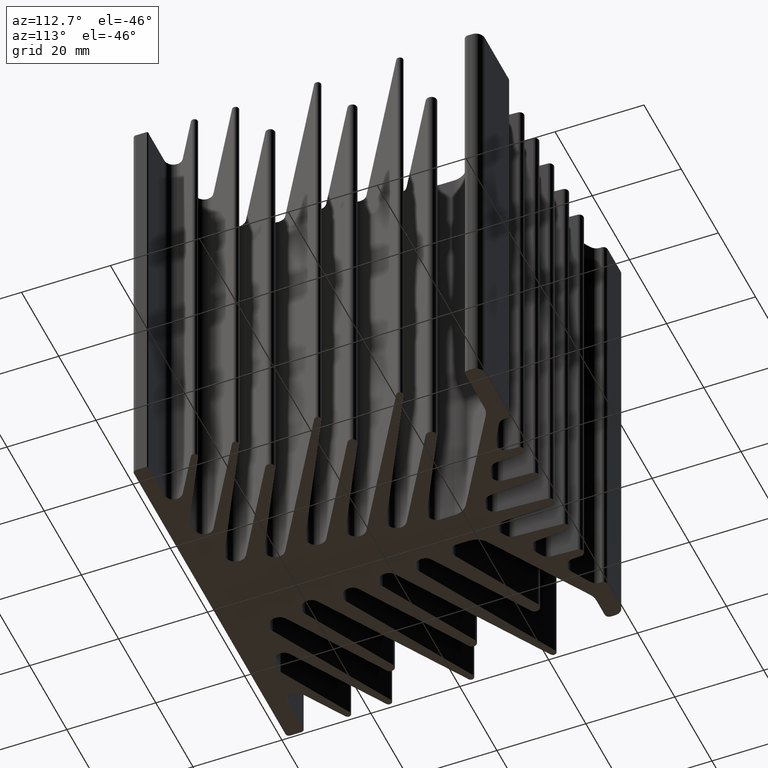
[diagram: clean part render]
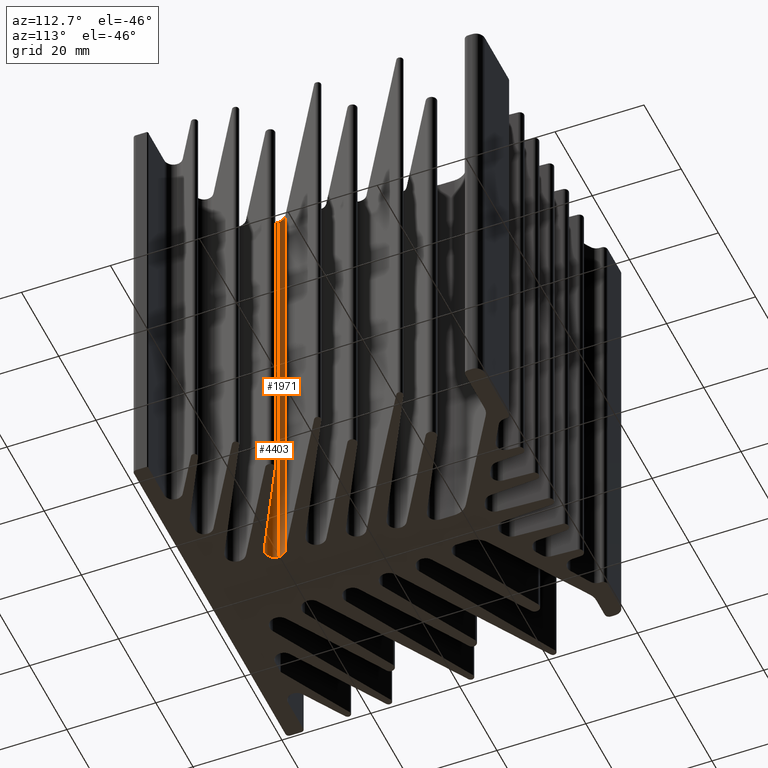
[diagram: same view with one multi-face feature highlighted, each face labeled with its STEP entity id]
A machine part, auxiliary view. The highlighted faces form ONE feature: a constant-radius fillet chain: 2 tangent blend faces with common blend radius 2.1822 mm. The faces share edges in the B-rep.
Their STEP definitions:
[1] entity #4403 (Cylinder):
#117 = CYLINDRICAL_SURFACE ( 'NONE', #3835, 2.182152714996887788 ) ;
#231 = FACE_OUTER_BOUND ( 'NONE', #1042, .T. ) ;
#272 = DIRECTION ( 'NONE',  ( -1.000000000000000000, 0.0000000000000000000, 0.0000000000000000000 ) ) ;
#542 = CARTESIAN_POINT ( 'NONE',  ( 10.21668558750828026, -22.94762682621195538, -50.00000000000000000 ) ) ;
#781 = VECTOR ( 'NONE', #4226, 1000.000000000000000 ) ;
#1023 = DIRECTION ( 'NONE',  ( -0.0000000000000000000, -0.0000000000000000000, -1.000000000000000000 ) ) ;
#1042 = EDGE_LOOP ( 'NONE', ( #4178, #1957, #4215, #2295 ) ) ;
#1190 = DIRECTION ( 'NONE',  ( -0.0000000000000000000, -0.0000000000000000000, -1.000000000000000000 ) ) ;
#1235 = AXIS2_PLACEMENT_3D ( 'NONE', #4547, #1023, #2614 ) ;
#1286 = CARTESIAN_POINT ( 'NONE',  ( 10.21668558750828026, -22.94762682621195538, 50.00000000000000000 ) ) ;
#1472 = VECTOR ( 'NONE', #1190, 1000.000000000000000 ) ;
#1676 = AXIS2_PLACEMENT_3D ( 'NONE', #3912, #3478, #4281 ) ;
#1712 = LINE ( 'NONE', #1286, #1472 ) ;
#1957 = ORIENTED_EDGE ( 'NONE', *, *, #4187, .F. ) ;
#2218 = EDGE_CURVE ( 'NONE', #2301, #3114, #4146, .T. ) ;
#2295 = ORIENTED_EDGE ( 'NONE', *, *, #2218, .T. ) ;
#2301 = VERTEX_POINT ( 'NONE', #542 ) ;
#2614 = DIRECTION ( 'NONE',  ( 1.000000000000000000, 0.0000000000000000000, 0.0000000000000000000 ) ) ;
#3114 = VERTEX_POINT ( 'NONE', #3342 ) ;
#3220 = CARTESIAN_POINT ( 'NONE',  ( 10.21668558750828026, -22.94762682621195538, 50.00000000000000000 ) ) ;
#3342 = CARTESIAN_POINT ( 'NONE',  ( 6.999999999991266542, -21.02629077875863217, -50.00000000000000000 ) ) ;
#3344 = VERTEX_POINT ( 'NONE', #4672 ) ;
#3420 = EDGE_CURVE ( 'NONE', #3344, #3114, #4707, .T. ) ;
#3478 = DIRECTION ( 'NONE',  ( -0.0000000000000000000, -0.0000000000000000000, -1.000000000000000000 ) ) ;
#3544 = VERTEX_POINT ( 'NONE', #3220 ) ;
#3707 = CARTESIAN_POINT ( 'NONE',  ( 9.182152714988154329, -21.02629077875863217, 50.00000000000000000 ) ) ;
#3758 = DIRECTION ( 'NONE',  ( -0.0000000000000000000, -0.0000000000000000000, -1.000000000000000000 ) ) ;
#3835 = AXIS2_PLACEMENT_3D ( 'NONE', #3707, #3758, #272 ) ;
#3886 = CARTESIAN_POINT ( 'NONE',  ( 6.999999999991266542, -21.02629077875863217, 50.00000000000000000 ) ) ;
#3912 = CARTESIAN_POINT ( 'NONE',  ( 9.182152714988154329, -21.02629077875863217, -50.00000000000000000 ) ) ;
#4095 = CIRCLE ( 'NONE', #1235, 2.182152714996887788 ) ;
#4146 = CIRCLE ( 'NONE', #1676, 2.182152714996887788 ) ;
#4178 = ORIENTED_EDGE ( 'NONE', *, *, #3420, .F. ) ;
#4187 = EDGE_CURVE ( 'NONE', #3544, #3344, #4095, .T. ) ;
#4215 = ORIENTED_EDGE ( 'NONE', *, *, #4591, .T. ) ;
#4226 = DIRECTION ( 'NONE',  ( -0.0000000000000000000, -0.0000000000000000000, -1.000000000000000000 ) ) ;
#4281 = DIRECTION ( 'NONE',  ( 1.000000000000000000, 0.0000000000000000000, 0.0000000000000000000 ) ) ;
#4403 = ADVANCED_FACE ( 'NONE', ( #231 ), #117, .F. ) ;
#4547 = CARTESIAN_POINT ( 'NONE',  ( 9.182152714988154329, -21.02629077875863217, 50.00000000000000000 ) ) ;
#4591 = EDGE_CURVE ( 'NONE', #3544, #2301, #1712, .T. ) ;
#4672 = CARTESIAN_POINT ( 'NONE',  ( 6.999999999991266542, -21.02629077875863217, 50.00000000000000000 ) ) ;
#4707 = LINE ( 'NONE', #3886, #781 ) ;
[2] entity #1971 (Cylinder):
#201 = DIRECTION ( 'NONE',  ( -0.0000000000000000000, -0.0000000000000000000, -1.000000000000000000 ) ) ;
#369 = DIRECTION ( 'NONE',  ( -0.0000000000000000000, -0.0000000000000000000, -1.000000000000000000 ) ) ;
#654 = CARTESIAN_POINT ( 'NONE',  ( 9.182152714988154329, -21.02629077875863217, 50.00000000000000000 ) ) ;
#781 = VECTOR ( 'NONE', #4226, 1000.000000000000000 ) ;
#810 = CARTESIAN_POINT ( 'NONE',  ( 9.182152714988154329, -21.02629077875863217, 50.00000000000000000 ) ) ;
#816 = AXIS2_PLACEMENT_3D ( 'NONE', #4205, #1966, #1925 ) ;
#928 = VERTEX_POINT ( 'NONE', #1253 ) ;
#1020 = VERTEX_POINT ( 'NONE', #1574 ) ;
#1198 = DIRECTION ( 'NONE',  ( -0.0000000000000000000, -0.0000000000000000000, -1.000000000000000000 ) ) ;
#1253 = CARTESIAN_POINT ( 'NONE',  ( 8.035493324948053129, -19.16969100637872003, 50.00000000000000000 ) ) ;
#1485 = ORIENTED_EDGE ( 'NONE', *, *, #3420, .T. ) ;
#1558 = DIRECTION ( 'NONE',  ( -1.000000000000000000, 0.0000000000000000000, 0.0000000000000000000 ) ) ;
#1574 = CARTESIAN_POINT ( 'NONE',  ( 8.035493324948053129, -19.16969100637872003, -50.00000000000000000 ) ) ;
#1750 = LINE ( 'NONE', #4122, #3609 ) ;
#1925 = DIRECTION ( 'NONE',  ( 1.000000000000000000, 0.0000000000000000000, 0.0000000000000000000 ) ) ;
#1966 = DIRECTION ( 'NONE',  ( -0.0000000000000000000, -0.0000000000000000000, -1.000000000000000000 ) ) ;
#1971 = ADVANCED_FACE ( 'NONE', ( #2012 ), #3763, .F. ) ;
#2012 = FACE_OUTER_BOUND ( 'NONE', #2353, .T. ) ;
#2353 = EDGE_LOOP ( 'NONE', ( #2878, #1485, #2509, #2561 ) ) ;
#2438 = DIRECTION ( 'NONE',  ( 1.000000000000000000, 0.0000000000000000000, 0.0000000000000000000 ) ) ;
#2509 = ORIENTED_EDGE ( 'NONE', *, *, #3485, .T. ) ;
#2561 = ORIENTED_EDGE ( 'NONE', *, *, #3442, .F. ) ;
#2878 = ORIENTED_EDGE ( 'NONE', *, *, #4390, .F. ) ;
#3114 = VERTEX_POINT ( 'NONE', #3342 ) ;
#3203 = AXIS2_PLACEMENT_3D ( 'NONE', #654, #369, #2438 ) ;
#3294 = CIRCLE ( 'NONE', #3203, 2.182152714996887788 ) ;
#3342 = CARTESIAN_POINT ( 'NONE',  ( 6.999999999991266542, -21.02629077875863217, -50.00000000000000000 ) ) ;
#3344 = VERTEX_POINT ( 'NONE', #4672 ) ;
#3420 = EDGE_CURVE ( 'NONE', #3344, #3114, #4707, .T. ) ;
#3442 = EDGE_CURVE ( 'NONE', #928, #1020, #1750, .T. ) ;
#3485 = EDGE_CURVE ( 'NONE', #3114, #1020, #4358, .T. ) ;
#3609 = VECTOR ( 'NONE', #201, 1000.000000000000000 ) ;
#3763 = CYLINDRICAL_SURFACE ( 'NONE', #4524, 2.182152714996887788 ) ;
#3886 = CARTESIAN_POINT ( 'NONE',  ( 6.999999999991266542, -21.02629077875863217, 50.00000000000000000 ) ) ;
#4122 = CARTESIAN_POINT ( 'NONE',  ( 8.035493324948053129, -19.16969100637872003, 50.00000000000000000 ) ) ;
#4205 = CARTESIAN_POINT ( 'NONE',  ( 9.182152714988154329, -21.02629077875863217, -50.00000000000000000 ) ) ;
#4226 = DIRECTION ( 'NONE',  ( -0.0000000000000000000, -0.0000000000000000000, -1.000000000000000000 ) ) ;
#4358 = CIRCLE ( 'NONE', #816, 2.182152714996887788 ) ;
#4390 = EDGE_CURVE ( 'NONE', #3344, #928, #3294, .T. ) ;
#4524 = AXIS2_PLACEMENT_3D ( 'NONE', #810, #1198, #1558 ) ;
#4672 = CARTESIAN_POINT ( 'NONE',  ( 6.999999999991266542, -21.02629077875863217, 50.00000000000000000 ) ) ;
#4707 = LINE ( 'NONE', #3886, #781 ) ;